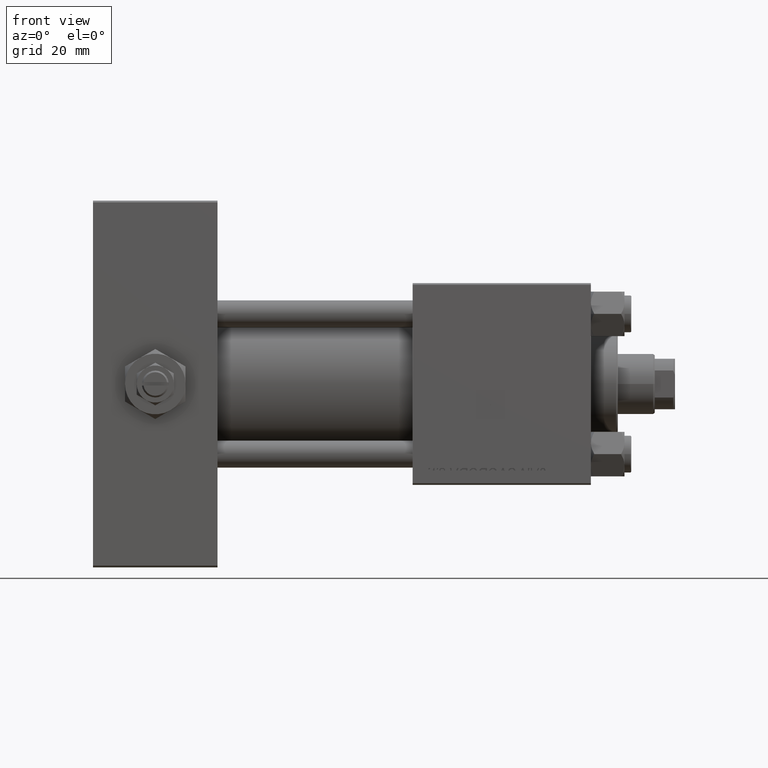
[diagram: clean part render]
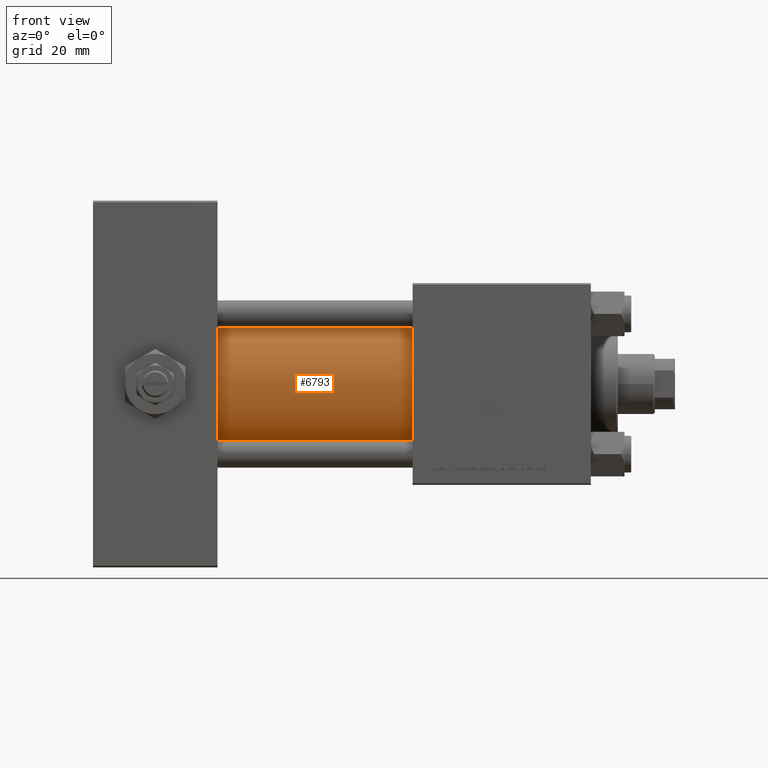
[diagram: same view with one face highlighted and labeled with its STEP entity id]
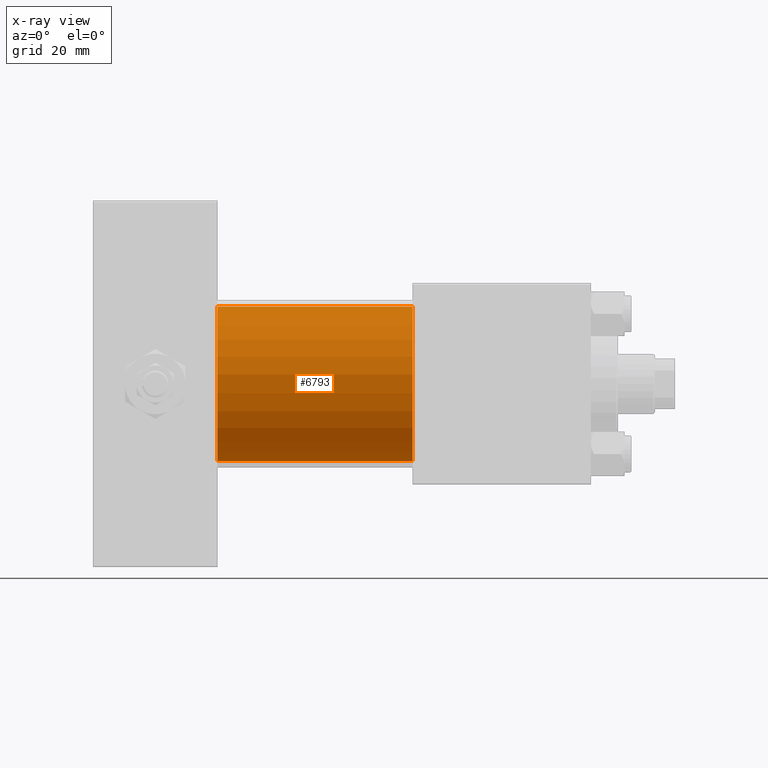
[diagram: x-ray of the same camera — body ghosted, the highlighted face saturated]
A machine part, front view. The second image highlights one B-rep face of the part: STEP entity #6793.
The next image is the same camera in x-ray: the body ghosted, the highlighted face saturated — about 0% of this face is hidden behind the body in this view.
In plain terms, the highlighted cylindrical surface (partial cylindrical patch) has radius 23 mm, axis along (-1, -0, -0).
Its self-contained STEP definition (entity closure, byte-faithful):
#492 = VERTEX_POINT ( 'NONE', #33905 ) ;
#1179 = CARTESIAN_POINT ( 'NONE',  ( 95.00000000000000000, -2.602085213965210642E-15, 23.00000000000000000 ) ) ;
#2912 = DIRECTION ( 'NONE',  ( 1.000000000000000000, 0.000000000000000000, 0.000000000000000000 ) ) ;
#2968 = CARTESIAN_POINT ( 'NONE',  ( 95.00000000000000000, -2.602085213965210642E-15, 0.000000000000000000 ) ) ;
#3241 = AXIS2_PLACEMENT_3D ( 'NONE', #18588, #22273, #50553 ) ;
#4140 = EDGE_CURVE ( 'NONE', #8924, #492, #24116, .T. ) ;
#6359 = CARTESIAN_POINT ( 'NONE',  ( 95.00000000000000000, 2.146024240737012665E-16, -23.00000000000000000 ) ) ;
#6793 = ADVANCED_FACE ( 'NONE', ( #47204 ), #34354, .T. ) ;
#7343 = DIRECTION ( 'NONE',  ( 0.000000000000000000, 0.000000000000000000, -1.000000000000000000 ) ) ;
#8835 = ORIENTED_EDGE ( 'NONE', *, *, #34745, .T. ) ;
#8924 = VERTEX_POINT ( 'NONE', #25907 ) ;
#14718 = VERTEX_POINT ( 'NONE', #38087 ) ;
#18138 = DIRECTION ( 'NONE',  ( -1.000000000000000000, -0.000000000000000000, -0.000000000000000000 ) ) ;
#18588 = CARTESIAN_POINT ( 'NONE',  ( 37.00000000000000000, -2.602085213965210642E-15, 0.000000000000000000 ) ) ;
#18831 = VECTOR ( 'NONE', #45175, 1000.000000000000000 ) ;
#19136 = CARTESIAN_POINT ( 'NONE',  ( 95.00000000000000000, -2.602085213965210642E-15, 0.000000000000000000 ) ) ;
#20117 = VERTEX_POINT ( 'NONE', #49169 ) ;
#20844 = EDGE_LOOP ( 'NONE', ( #40616, #37606, #8835, #45508 ) ) ;
#22273 = DIRECTION ( 'NONE',  ( 1.000000000000000000, -0.000000000000000000, 0.000000000000000000 ) ) ;
#24116 = CIRCLE ( 'NONE', #3241, 23.00000000000000000 ) ;
#24195 = AXIS2_PLACEMENT_3D ( 'NONE', #2968, #50368, #42771 ) ;
#24992 = LINE ( 'NONE', #1179, #18831 ) ;
#25817 = EDGE_CURVE ( 'NONE', #20117, #492, #33563, .T. ) ;
#25907 = CARTESIAN_POINT ( 'NONE',  ( 37.00000000000000000, -2.602085213965210642E-15, 23.00000000000000000 ) ) ;
#27477 = AXIS2_PLACEMENT_3D ( 'NONE', #19136, #2912, #7343 ) ;
#28645 = VECTOR ( 'NONE', #18138, 1000.000000000000000 ) ;
#33563 = LINE ( 'NONE', #6359, #28645 ) ;
#33905 = CARTESIAN_POINT ( 'NONE',  ( 37.00000000000000000, 2.146024240737012665E-16, -23.00000000000000000 ) ) ;
#34354 = CYLINDRICAL_SURFACE ( 'NONE', #24195, 23.00000000000000000 ) ;
#34745 = EDGE_CURVE ( 'NONE', #14718, #8924, #24992, .T. ) ;
#37606 = ORIENTED_EDGE ( 'NONE', *, *, #43632, .F. ) ;
#38087 = CARTESIAN_POINT ( 'NONE',  ( 95.00000000000000000, -2.602085213965210642E-15, 23.00000000000000000 ) ) ;
#40616 = ORIENTED_EDGE ( 'NONE', *, *, #25817, .F. ) ;
#42771 = DIRECTION ( 'NONE',  ( 0.000000000000000000, 0.000000000000000000, 1.000000000000000000 ) ) ;
#43632 = EDGE_CURVE ( 'NONE', #14718, #20117, #50087, .T. ) ;
#45175 = DIRECTION ( 'NONE',  ( -1.000000000000000000, -0.000000000000000000, -0.000000000000000000 ) ) ;
#45508 = ORIENTED_EDGE ( 'NONE', *, *, #4140, .T. ) ;
#47204 = FACE_OUTER_BOUND ( 'NONE', #20844, .T. ) ;
#49169 = CARTESIAN_POINT ( 'NONE',  ( 95.00000000000000000, 2.146024240737012665E-16, -23.00000000000000000 ) ) ;
#50087 = CIRCLE ( 'NONE', #27477, 23.00000000000000000 ) ;
#50368 = DIRECTION ( 'NONE',  ( -1.000000000000000000, -0.000000000000000000, -0.000000000000000000 ) ) ;
#50553 = DIRECTION ( 'NONE',  ( 0.000000000000000000, 0.000000000000000000, 1.000000000000000000 ) ) ;